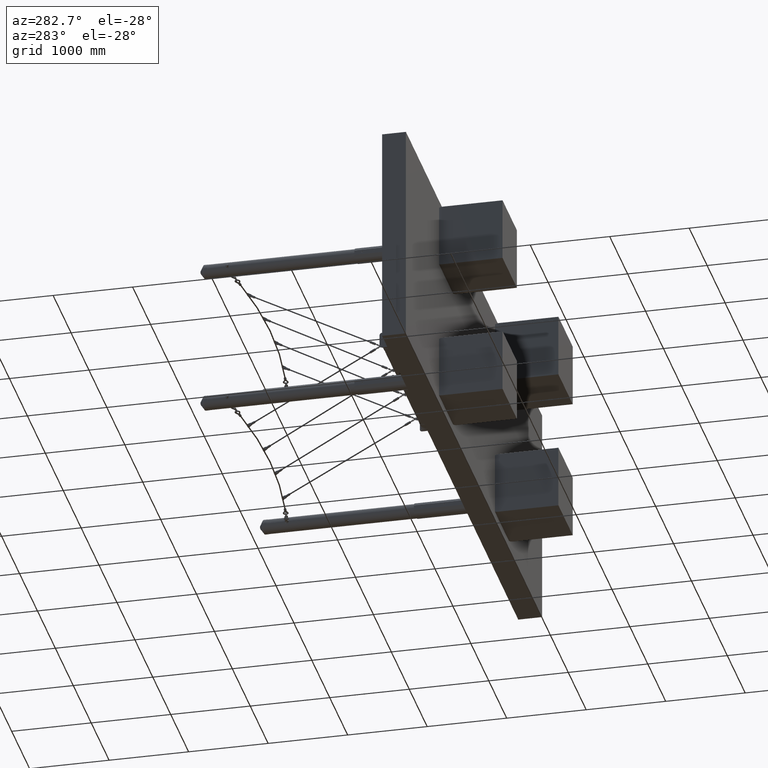
[diagram: clean part render]
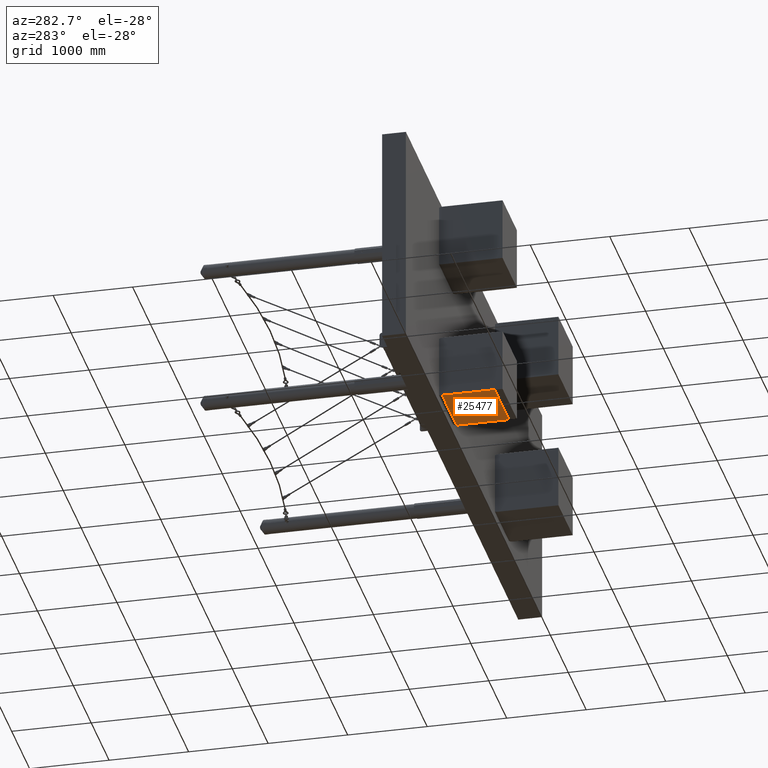
[diagram: same view with one face highlighted and labeled with its STEP entity id]
A machine part, auxiliary view. The second image highlights one B-rep face of the part: STEP entity #25477.
In plain terms, the highlighted planar face has unit normal (0, 0, 1).
Its self-contained STEP definition (entity closure, byte-faithful):
#2110 = PLANE ( 'NONE',  #51447 ) ;
#2126 = FACE_OUTER_BOUND ( 'NONE', #19521, .T. ) ;
#2136 = CARTESIAN_POINT ( 'NONE',  ( -400.0000000000002300, 800.0000000000000000, -2219.999999999999500 ) ) ;
#2137 = DIRECTION ( 'NONE',  ( 0.0000000000000000000, 0.0000000000000000000, 1.000000000000000000 ) ) ;
#2138 = DIRECTION ( 'NONE',  ( 1.000000000000000000, 0.0000000000000000000, -0.0000000000000000000 ) ) ;
#3780 = VECTOR ( 'NONE', #5404, 1000.000000000000000 ) ;
#3781 = VECTOR ( 'NONE', #5393, 1000.000000000000000 ) ;
#3784 = VECTOR ( 'NONE', #5402, 1000.000000000000000 ) ;
#3786 = VECTOR ( 'NONE', #5407, 1000.000000000000000 ) ;
#5383 = LINE ( 'NONE', #5391, #3781 ) ;
#5388 = LINE ( 'NONE', #5403, #3780 ) ;
#5391 = CARTESIAN_POINT ( 'NONE',  ( 399.9999999999997700, 800.0000000000000000, -2219.999999999999500 ) ) ;
#5393 = DIRECTION ( 'NONE',  ( -0.0000000000000000000, -1.000000000000000000, -0.0000000000000000000 ) ) ;
#5399 = LINE ( 'NONE', #5401, #3784 ) ;
#5401 = CARTESIAN_POINT ( 'NONE',  ( -400.0000000000002300, 800.0000000000000000, -2219.999999999999500 ) ) ;
#5402 = DIRECTION ( 'NONE',  ( -0.0000000000000000000, -1.000000000000000000, -0.0000000000000000000 ) ) ;
#5403 = CARTESIAN_POINT ( 'NONE',  ( 399.9999999999997700, 658.5786437626903800, -2219.999999999999500 ) ) ;
#5404 = DIRECTION ( 'NONE',  ( 1.000000000000000000, -0.0000000000000000000, -0.0000000000000000000 ) ) ;
#5405 = LINE ( 'NONE', #5406, #3786 ) ;
#5406 = CARTESIAN_POINT ( 'NONE',  ( -400.0000000000002300, 0.0000000000000000000, -2219.999999999999500 ) ) ;
#5407 = DIRECTION ( 'NONE',  ( -1.000000000000000000, -0.0000000000000000000, -0.0000000000000000000 ) ) ;
#6339 = CARTESIAN_POINT ( 'NONE',  ( 399.9999999999997700, 658.5786437626901500, -2219.999999999999500 ) ) ;
#6342 = CARTESIAN_POINT ( 'NONE',  ( 399.9999999999997700, 0.0000000000000000000, -2219.999999999999500 ) ) ;
#6343 = CARTESIAN_POINT ( 'NONE',  ( -400.0000000000002300, 658.5786437626902600, -2219.999999999999500 ) ) ;
#6344 = CARTESIAN_POINT ( 'NONE',  ( -400.0000000000002300, 0.0000000000000000000, -2219.999999999999500 ) ) ;
#19521 = EDGE_LOOP ( 'NONE', ( #27135, #27136, #27137, #27138 ) ) ;
#25477 = ADVANCED_FACE ( 'NONE', ( #2126 ), #2110, .F. ) ;
#25958 = EDGE_CURVE ( 'NONE', #27733, #27736, #5383, .T. ) ;
#25961 = EDGE_CURVE ( 'NONE', #27737, #27738, #5399, .T. ) ;
#25962 = EDGE_CURVE ( 'NONE', #27737, #27733, #5388, .T. ) ;
#25963 = EDGE_CURVE ( 'NONE', #27736, #27738, #5405, .T. ) ;
#27135 = ORIENTED_EDGE ( 'NONE', *, *, #25961, .F. ) ;
#27136 = ORIENTED_EDGE ( 'NONE', *, *, #25962, .T. ) ;
#27137 = ORIENTED_EDGE ( 'NONE', *, *, #25958, .T. ) ;
#27138 = ORIENTED_EDGE ( 'NONE', *, *, #25963, .T. ) ;
#27733 = VERTEX_POINT ( 'NONE', #6339 ) ;
#27736 = VERTEX_POINT ( 'NONE', #6342 ) ;
#27737 = VERTEX_POINT ( 'NONE', #6343 ) ;
#27738 = VERTEX_POINT ( 'NONE', #6344 ) ;
#51447 = AXIS2_PLACEMENT_3D ( 'NONE', #2136, #2137, #2138 ) ;